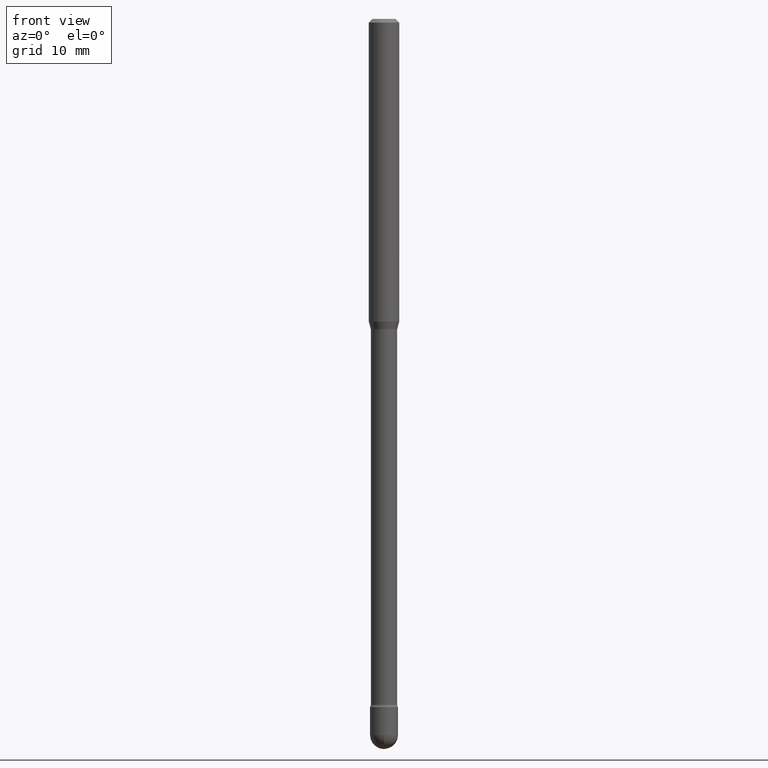
[diagram: clean part render]
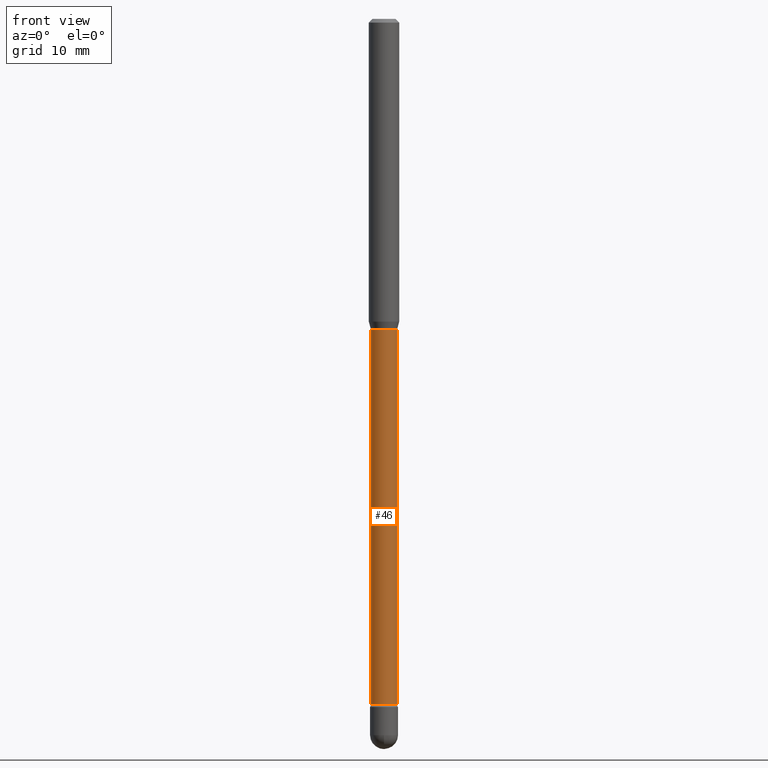
[diagram: same view with one face highlighted and labeled with its STEP entity id]
A machine part, front view. The second image highlights one B-rep face of the part: STEP entity #46.
In plain terms, the highlighted cylindrical surface (edge-blend (fillet) strip) has radius 1.3729 mm, axis along (-0, 0, 1).
Its self-contained STEP definition (entity closure, byte-faithful):
#31 = VERTEX_POINT ( 'NONE', #485 ) ;
#39 = ORIENTED_EDGE ( 'NONE', *, *, #472, .F. ) ;
#46 = ADVANCED_FACE ( 'NONE', ( #565 ), #92, .T. ) ;
#60 = EDGE_CURVE ( 'NONE', #31, #289, #345, .T. ) ;
#85 = DIRECTION ( 'NONE',  ( 1.000000000000000000, -6.982962677686266711E-15, 0.000000000000000000 ) ) ;
#86 = ORIENTED_EDGE ( 'NONE', *, *, #178, .T. ) ;
#92 = CYLINDRICAL_SURFACE ( 'NONE', #440, 0.05404999999999999388 ) ;
#105 = VECTOR ( 'NONE', #131, 39.37007874015748143 ) ;
#110 = EDGE_LOOP ( 'NONE', ( #259, #191, #86, #39 ) ) ;
#124 = CARTESIAN_POINT ( 'NONE',  ( 3.122802009027644982E-29, -4.458533640603088529E-15, -1.276974787463811323 ) ) ;
#130 = DIRECTION ( 'NONE',  ( -2.445468806185136597E-29, 3.491481338843145583E-15, 1.000000000000000000 ) ) ;
#131 = DIRECTION ( 'NONE',  ( -2.445468806185136877E-29, 3.491481338843145188E-15, 1.000000000000000000 ) ) ;
#168 = CARTESIAN_POINT ( 'NONE',  ( 0.05404999999999998694, -1.021443110283749521E-14, -2.817429341715430358 ) ) ;
#178 = EDGE_CURVE ( 'NONE', #469, #382, #319, .T. ) ;
#186 = DIRECTION ( 'NONE',  ( -2.445468806185136877E-29, 3.491481338843145188E-15, 1.000000000000000000 ) ) ;
#191 = ORIENTED_EDGE ( 'NONE', *, *, #467, .T. ) ;
#202 = CARTESIAN_POINT ( 'NONE',  ( 0.05405000000000000082, -4.835962773332031011E-15, -1.276974787463811323 ) ) ;
#209 = DIRECTION ( 'NONE',  ( -2.445468806185136597E-29, 3.491481338843145583E-15, 1.000000000000000000 ) ) ;
#223 = CARTESIAN_POINT ( 'NONE',  ( -0.05404999999999999388, 3.840483486783357833E-16, 4.780733988912433515E-16 ) ) ;
#224 = CARTESIAN_POINT ( 'NONE',  ( -1.169113584055446105E-44, 1.669184350826100908E-30, 4.780733988912460139E-16 ) ) ;
#233 = AXIS2_PLACEMENT_3D ( 'NONE', #338, #209, #557 ) ;
#252 = CIRCLE ( 'NONE', #556, 0.05405000000000000082 ) ;
#259 = ORIENTED_EDGE ( 'NONE', *, *, #60, .F. ) ;
#289 = VERTEX_POINT ( 'NONE', #503 ) ;
#319 = LINE ( 'NONE', #406, #482 ) ;
#338 = CARTESIAN_POINT ( 'NONE',  ( 6.889935568795809204E-29, -9.837001970108552726E-15, -2.817429341715430358 ) ) ;
#345 = LINE ( 'NONE', #223, #105 ) ;
#382 = VERTEX_POINT ( 'NONE', #202 ) ;
#406 = CARTESIAN_POINT ( 'NONE',  ( 0.05404999999999999388, -3.774291327289410031E-16, 4.780733988912486763E-16 ) ) ;
#438 = DIRECTION ( 'NONE',  ( -2.445468806185136597E-29, 3.491481338843145583E-15, 1.000000000000000000 ) ) ;
#440 = AXIS2_PLACEMENT_3D ( 'NONE', #224, #438, #442 ) ;
#442 = DIRECTION ( 'NONE',  ( 1.000000000000000000, -6.982962677686266711E-15, 4.825802158028139437E-29 ) ) ;
#467 = EDGE_CURVE ( 'NONE', #31, #469, #501, .T. ) ;
#469 = VERTEX_POINT ( 'NONE', #168 ) ;
#472 = EDGE_CURVE ( 'NONE', #289, #382, #252, .T. ) ;
#482 = VECTOR ( 'NONE', #186, 39.37007874015748143 ) ;
#485 = CARTESIAN_POINT ( 'NONE',  ( -0.05404999999999998694, -9.457404646638868942E-15, -2.817429341715430358 ) ) ;
#501 = CIRCLE ( 'NONE', #233, 0.05404999999999998694 ) ;
#503 = CARTESIAN_POINT ( 'NONE',  ( -0.05405000000000000082, -6.763719456677488542E-15, -1.276974787463811323 ) ) ;
#556 = AXIS2_PLACEMENT_3D ( 'NONE', #124, #130, #85 ) ;
#557 = DIRECTION ( 'NONE',  ( 1.000000000000000000, -6.982962677686250933E-15, 0.000000000000000000 ) ) ;
#565 = FACE_OUTER_BOUND ( 'NONE', #110, .T. ) ;